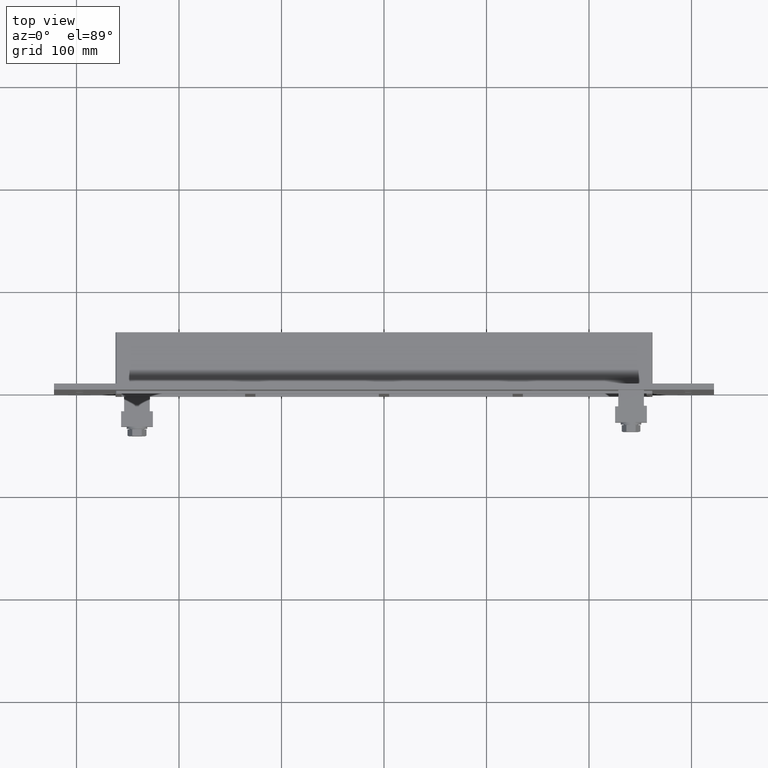
[diagram: clean part render]
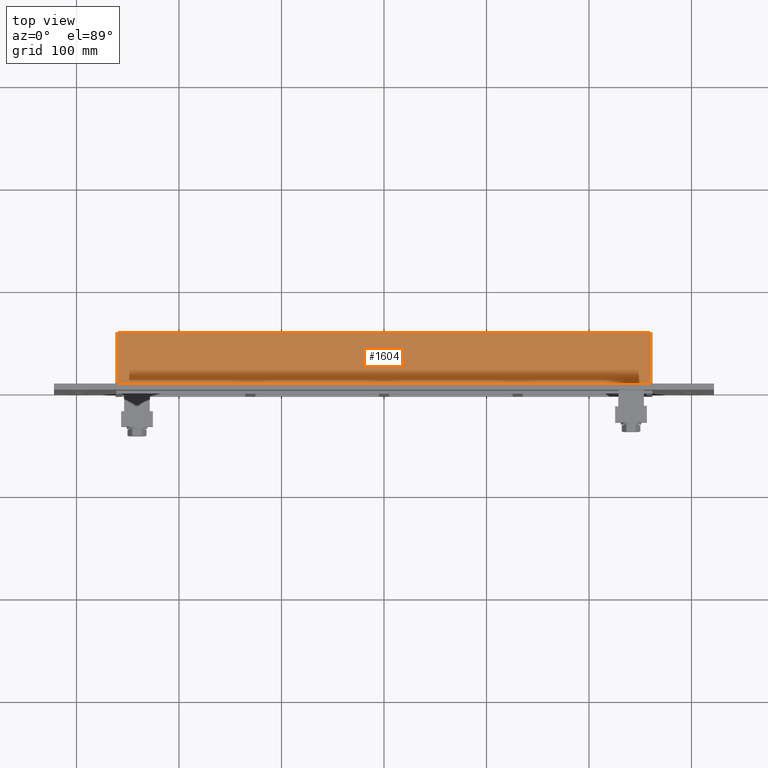
[diagram: same view with one face highlighted and labeled with its STEP entity id]
A machine part, top view. The second image highlights one B-rep face of the part: STEP entity #1604.
In plain terms, the highlighted planar face has unit normal (0, 0, 1).
Its self-contained STEP definition (entity closure, byte-faithful):
#933=CARTESIAN_POINT('',(-260.0,6.000000000000001,85.749999999999957));
#934=VERTEX_POINT('',#933);
#984=CARTESIAN_POINT('',(260.0,6.000000000000001,85.749999999999957));
#985=VERTEX_POINT('',#984);
#993=CARTESIAN_POINT('',(-260.0,6.000000000000001,85.749999999999957));
#994=DIRECTION('',(1.0,0.0,0.0));
#995=VECTOR('',#994,520.0);
#996=LINE('',#993,#995);
#997=EDGE_CURVE('',#934,#985,#996,.T.);
#1562=CARTESIAN_POINT('',(-260.0,57.0,85.749999999999957));
#1563=VERTEX_POINT('',#1562);
#1564=CARTESIAN_POINT('',(-260.0,6.000000000000001,85.749999999999957));
#1565=DIRECTION('',(0.0,1.0,0.0));
#1566=VECTOR('',#1565,51.0);
#1567=LINE('',#1564,#1566);
#1568=EDGE_CURVE('',#934,#1563,#1567,.T.);
#1581=CARTESIAN_POINT('',(-262.0,0.0,85.749999999999957));
#1582=DIRECTION('',(0.0,0.0,1.0));
#1583=DIRECTION('',(1.0,0.0,0.0));
#1584=AXIS2_PLACEMENT_3D('',#1581,#1582,#1583);
#1585=PLANE('',#1584);
#1586=ORIENTED_EDGE('',*,*,#997,.T.);
#1587=CARTESIAN_POINT('',(260.0,57.0,85.749999999999957));
#1588=VERTEX_POINT('',#1587);
#1589=CARTESIAN_POINT('',(260.0,57.0,85.749999999999957));
#1590=DIRECTION('',(0.0,-1.0,0.0));
#1591=VECTOR('',#1590,51.0);
#1592=LINE('',#1589,#1591);
#1593=EDGE_CURVE('',#1588,#985,#1592,.T.);
#1594=ORIENTED_EDGE('',*,*,#1593,.F.);
#1595=CARTESIAN_POINT('',(-260.0,57.0,85.749999999999957));
#1596=DIRECTION('',(1.0,0.0,0.0));
#1597=VECTOR('',#1596,520.0);
#1598=LINE('',#1595,#1597);
#1599=EDGE_CURVE('',#1563,#1588,#1598,.T.);
#1600=ORIENTED_EDGE('',*,*,#1599,.F.);
#1601=ORIENTED_EDGE('',*,*,#1568,.F.);
#1602=EDGE_LOOP('',(#1586,#1594,#1600,#1601));
#1603=FACE_OUTER_BOUND('',#1602,.T.);
#1604=ADVANCED_FACE('',(#1603),#1585,.T.);